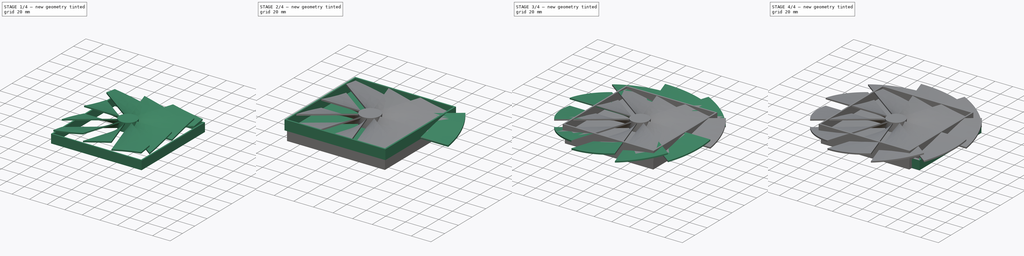
[diagram: build sequence overview — one tinted view per stage of 4, left to right]
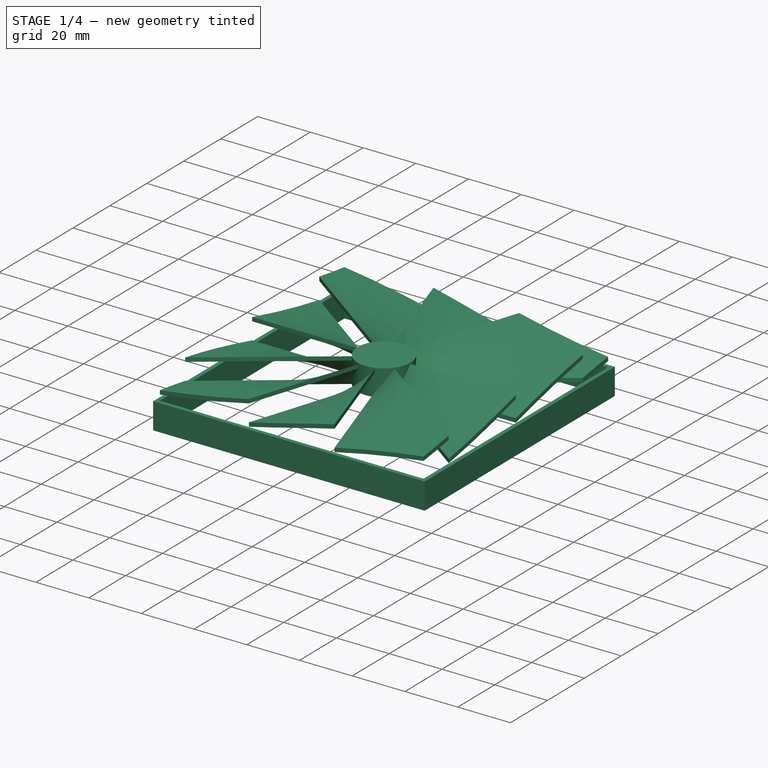
[diagram: stage 1 of 4 — iso view after this stage's code; geometry added in this stage tinted green]
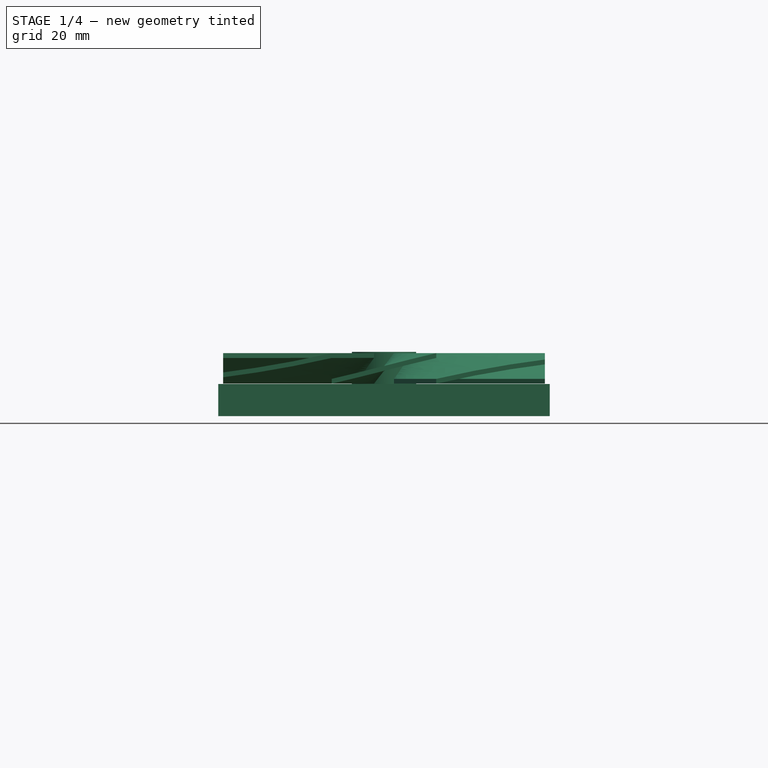
[diagram: stage 1 of 4 — front view after this stage's code; geometry added in this stage tinted green]
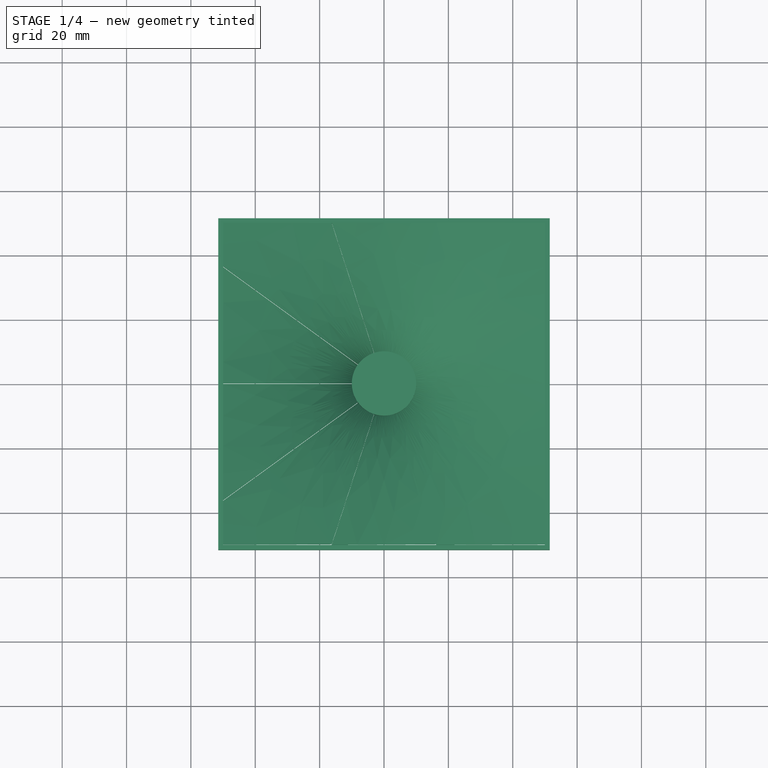
[diagram: stage 1 of 4 — top view after this stage's code; geometry added in this stage tinted green]
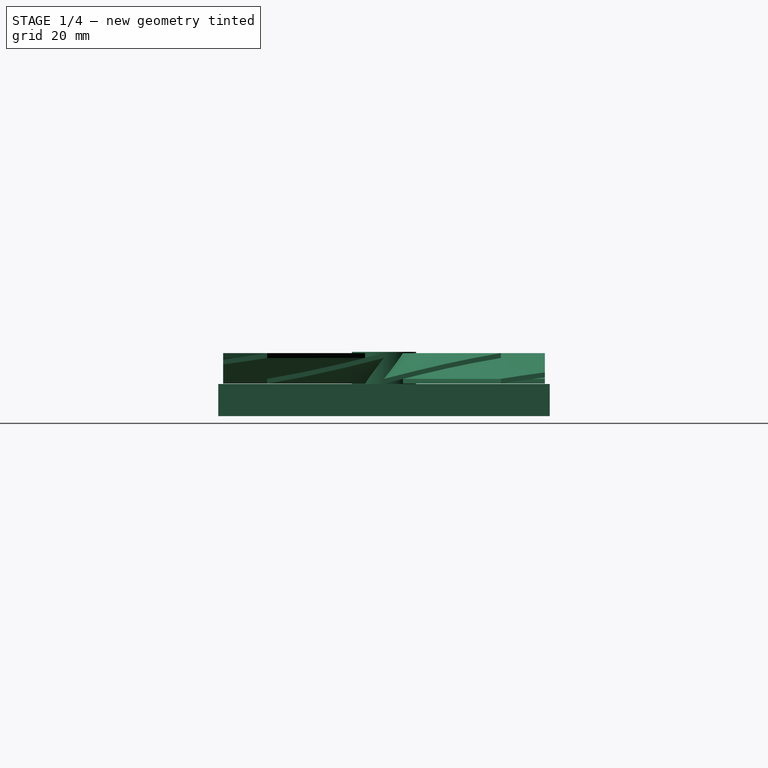
[diagram: stage 1 of 4 — right view after this stage's code; geometry added in this stage tinted green]
FCSTD DOCUMENT  (FreeCAD 0.17R13519 (Git))
Label: 风扇罩-A
License: All rights reserved
LicenseURL: http://en.wikipedia.org/wiki/All_rights_reserved
objects: Sketcher::SketchObject×6, PartDesign::Pad×3, PartDesign::Body×3, Part::Feature×3, PartDesign::Pocket×2, Part::Cylinder×1, Part::Helix×1, Part::Sweep×1, Part::FeaturePython×1, Part::MultiFuse×1, Part::Common×1, Part::Fuse×1
note: 29 computed .brp shape members not serialized (recipe doc carries the construction recipe); baked Part::Feature solids carry a one-line shape summary decoded from their .brp

FEATURE [PartDesign::Body] Body001
  Group = -> [Sketch003,Pad001]
  Origin = -> Origin001
  Placement = pos=(0,0,10) rot=(0,0,1;0rad)
  Tip = -> Pad001
FEATURE [Part::Feature] Body001001  label="Body002"
  shape: bbox 100 x 100 x 10 mm, 6 faces (baked)
FEATURE [Part::Feature] Fusion001
  shape: bbox 159.2 x 160.8 x 10 mm, 53 faces (baked)
FEATURE [Part::Common] Common
  Base = -> Body001001
  Tool = -> Fusion001
FEATURE [Sketcher::SketchObject] Sketch004
  MapMode = 5
  Support = -> [XY_Plane002]
  sketch-geometry (4):
    g0: LineSegment StartX=-51.5 StartY=51.5 StartZ=0 EndX=51.5 EndY=51.5 EndZ=0
    g1: LineSegment StartX=51.5 StartY=51.5 StartZ=0 EndX=51.5 EndY=-51.5 EndZ=0
    g2: LineSegment StartX=51.5 StartY=-51.5 StartZ=0 EndX=-51.5 EndY=-51.5 EndZ=0
    g3: LineSegment StartX=-51.5 StartY=-51.5 StartZ=0 EndX=-51.5 EndY=51.5 EndZ=0
  constraints (12):
    c: Coincident(g0,g1)
    c: Coincident(g1,g2)
    c: Coincident(g2,g3)
    c: Coincident(g3,g0)
    c: Horizontal(g0)
    c: Horizontal(g2)
    c: Vertical(g1)
    c: Vertical(g3)
    c: DistanceX(g0,g0) = 103
    c: DistanceY(g3,g3) = 103
    c: Distance(g-1,g0) = 51.5
    c: Distance(g-1,g3) = 51.5
FEATURE [PartDesign::Pad] Pad002
  Length = 10
  Length2 = 100
  Profile = -> Sketch004
  Type = 0
FEATURE [Sketcher::SketchObject] Sketch005
  ExternalGeometry = -> [Pad002]
  MapMode = 5
  Placement = pos=(0,0,10) rot=(0,0,1;0rad)
  Support = -> [Pad002]
  sketch-geometry (4):
    g0: LineSegment StartX=-50 StartY=50 StartZ=0 EndX=50 EndY=50 EndZ=0
    g1: LineSegment StartX=50 StartY=50 StartZ=0 EndX=50 EndY=-50 EndZ=0
    g2: LineSegment StartX=50 StartY=-50 StartZ=0 EndX=-50 EndY=-50 EndZ=0
    g3: LineSegment StartX=-50 StartY=-50 StartZ=0 EndX=-50 EndY=50 EndZ=0
  constraints (12):
    c: Coincident(g0,g1)
    c: Coincident(g1,g2)
    c: Coincident(g2,g3)
    c: Coincident(g3,g0)
    c: Horizontal(g0)
    c: Horizontal(g2)
    c: Vertical(g1)
    c: Vertical(g3)
    c: DistanceX(g0,g0) = 100
    c: DistanceY(g3,g3) = 100
    c: Distance(g0,g-3) = 1.5
    c: Distance(g0,g-4) = 1.5
FEATURE [PartDesign::Pocket] Pocket001
  BaseFeature = -> Pad002
  Length = 5
  Length2 = 100
  Profile = -> Sketch005
  Type = 1
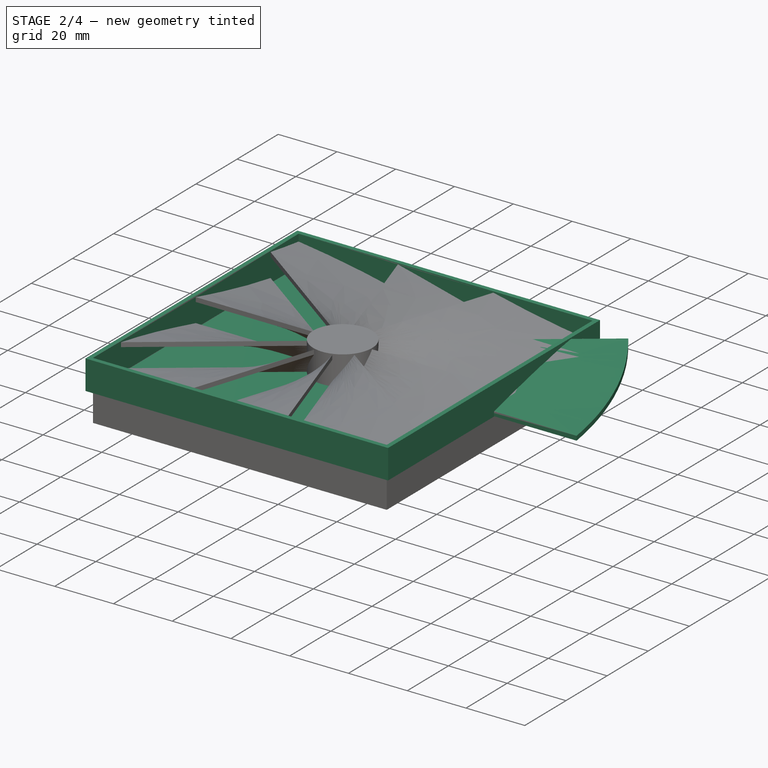
[diagram: stage 2 of 4 — iso view after this stage's code; geometry added in this stage tinted green]
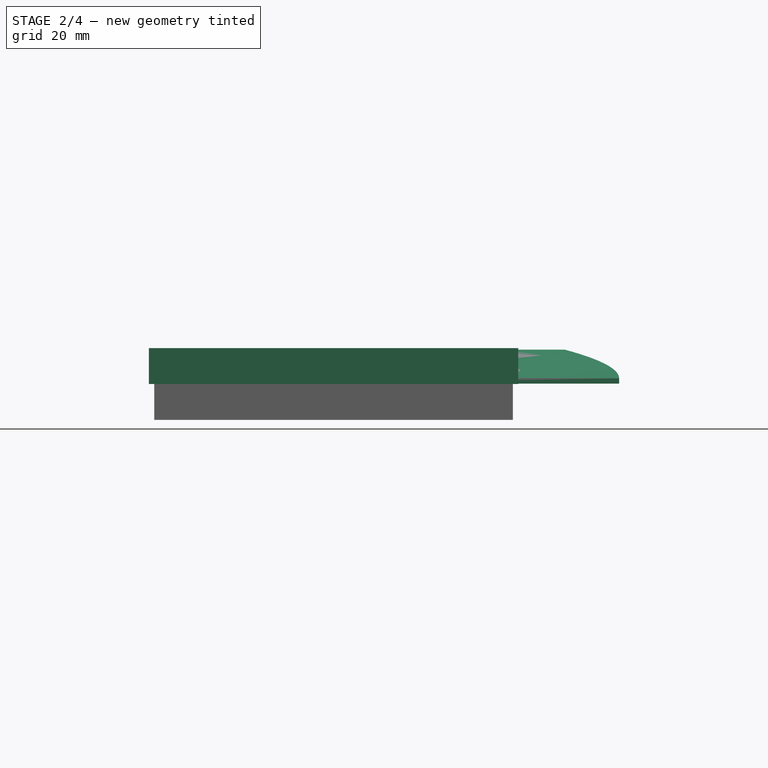
[diagram: stage 2 of 4 — front view after this stage's code; geometry added in this stage tinted green]
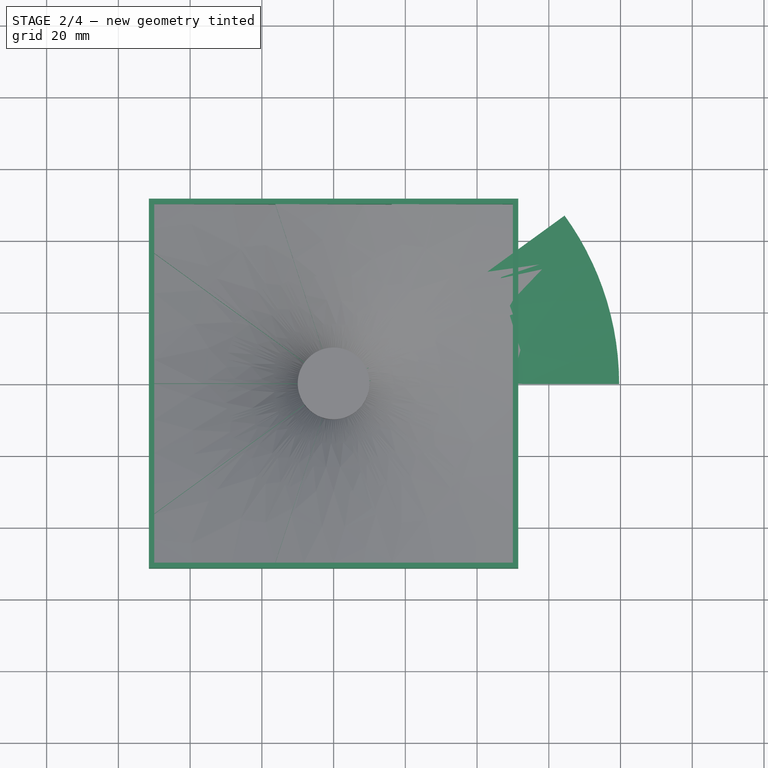
[diagram: stage 2 of 4 — top view after this stage's code; geometry added in this stage tinted green]
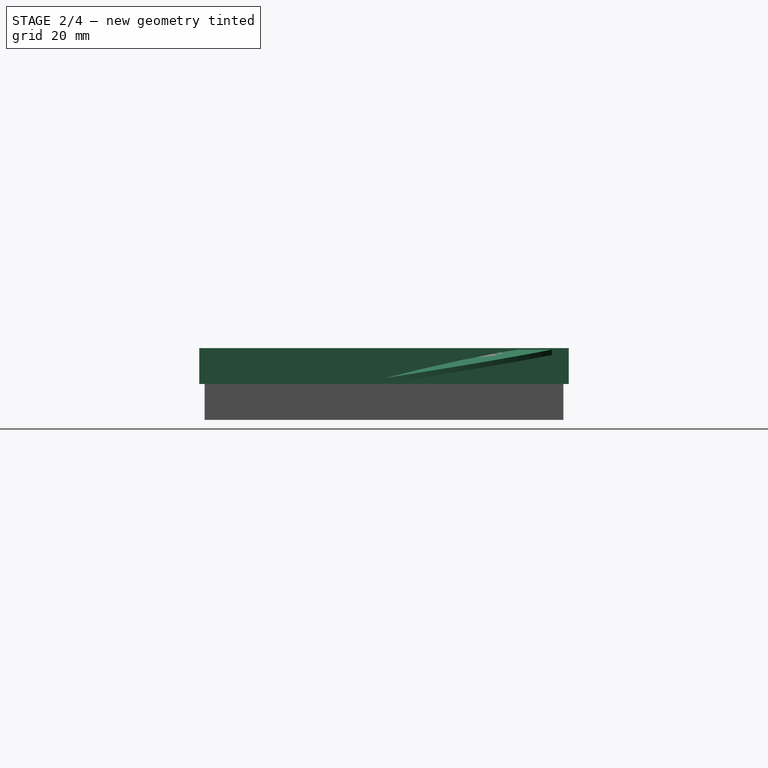
[diagram: stage 2 of 4 — right view after this stage's code; geometry added in this stage tinted green]
FEATURE [Part::Helix] Helix  label="螺旋体"
  Angle = 0
  AttacherType = Attacher::AttachEngine3D
  Height = 8
  LocalCoord = 0
  Pitch = 80
  Radius = 10
  Style = 1
FEATURE [Sketcher::SketchObject] Sketch002
  Placement = pos=(0,0,0) rot=(1,0,0;1.5708rad)
  sketch-geometry (4):
    g0: LineSegment StartX=-0.392547 StartY=11.5991 StartZ=0 EndX=79.6075 EndY=11.5991 EndZ=0
    g1: LineSegment StartX=79.6075 StartY=11.5991 StartZ=0 EndX=79.6075 EndY=10.0991 EndZ=0
    g2: LineSegment StartX=79.6075 StartY=10.0991 StartZ=0 EndX=-0.392547 EndY=10.0991 EndZ=0
    g3: LineSegment StartX=-0.392547 StartY=10.0991 StartZ=0 EndX=-0.392547 EndY=11.5991 EndZ=0
  constraints (10):
    c: Coincident(g0,g1)
    c: Coincident(g1,g2)
    c: Coincident(g2,g3)
    c: Coincident(g3,g0)
    c: Horizontal(g0)
    c: Horizontal(g2)
    c: Vertical(g1)
    c: Vertical(g3)
    c: DistanceY(g1,g1) = 1.5
    c: DistanceX(g0,g0) = 80
FEATURE [Part::Sweep] Sweep
  Frenet = true
  Sections = -> [Sketch002]
  Solid = true
  Spine = -> Helix [Edge1]
  Transition = 1
FEATURE [Sketcher::SketchObject] Sketch003
  MapMode = 5
  Support = -> [XY_Plane001]
  sketch-geometry (4):
    g0: LineSegment StartX=-50 StartY=50 StartZ=0 EndX=50 EndY=50 EndZ=0
    g1: LineSegment StartX=50 StartY=50 StartZ=0 EndX=50 EndY=-50 EndZ=0
    g2: LineSegment StartX=50 StartY=-50 StartZ=0 EndX=-50 EndY=-50 EndZ=0
    g3: LineSegment StartX=-50 StartY=-50 StartZ=0 EndX=-50 EndY=50 EndZ=0
  constraints (12):
    c: Coincident(g0,g1)
    c: Coincident(g1,g2)
    c: Coincident(g2,g3)
    c: Coincident(g3,g0)
    c: Horizontal(g0)
    c: Horizontal(g2)
    c: Vertical(g1)
    c: Vertical(g3)
    c: DistanceX(g0,g0) = 100
    c: DistanceY(g3,g3) = 100
    c: Distance(g-1,g3) = 50
    c: Distance(g-1,g0) = 50
FEATURE [PartDesign::Pad] Pad001
  Length = 10
  Length2 = 100
  Profile = -> Sketch003
  Type = 0
FEATURE [PartDesign::Body] Body001002
  Group = -> [Sketch004,Pad002,Sketch005,Pocket001]
  Origin = -> Origin002
  Placement = pos=(0,0,10) rot=(0,0,1;0rad)
  Tip = -> Pocket001
FEATURE [Part::Fuse] Fusion002
  Base = -> Common
  Tool = -> Body001002
FEATURE [Part::Feature] Fusion002001  label="Fusion003"
  shape: bbox 159.2 x 160.8 x 10 mm, 53 faces (baked)
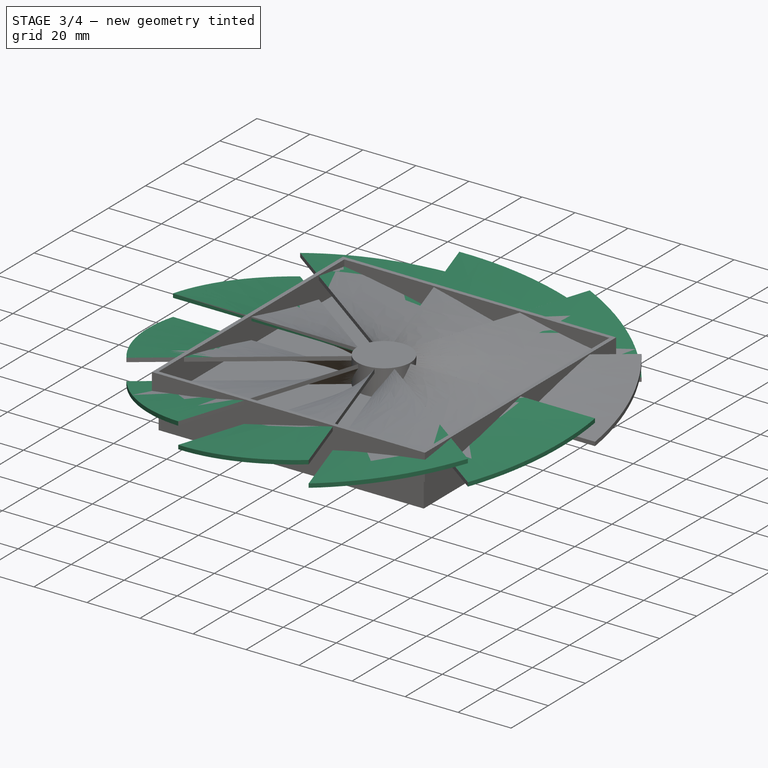
[diagram: stage 3 of 4 — iso view after this stage's code; geometry added in this stage tinted green]
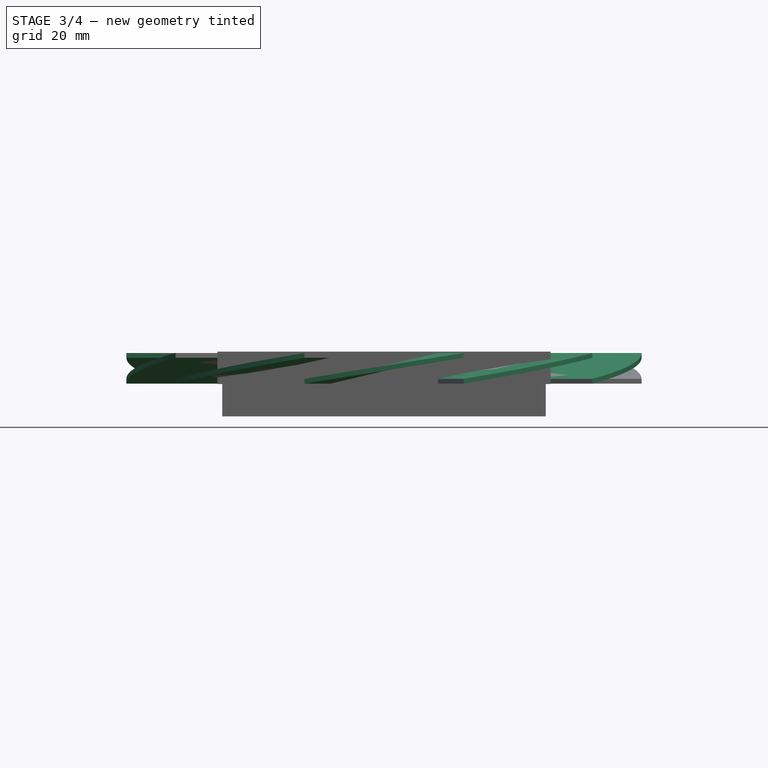
[diagram: stage 3 of 4 — front view after this stage's code; geometry added in this stage tinted green]
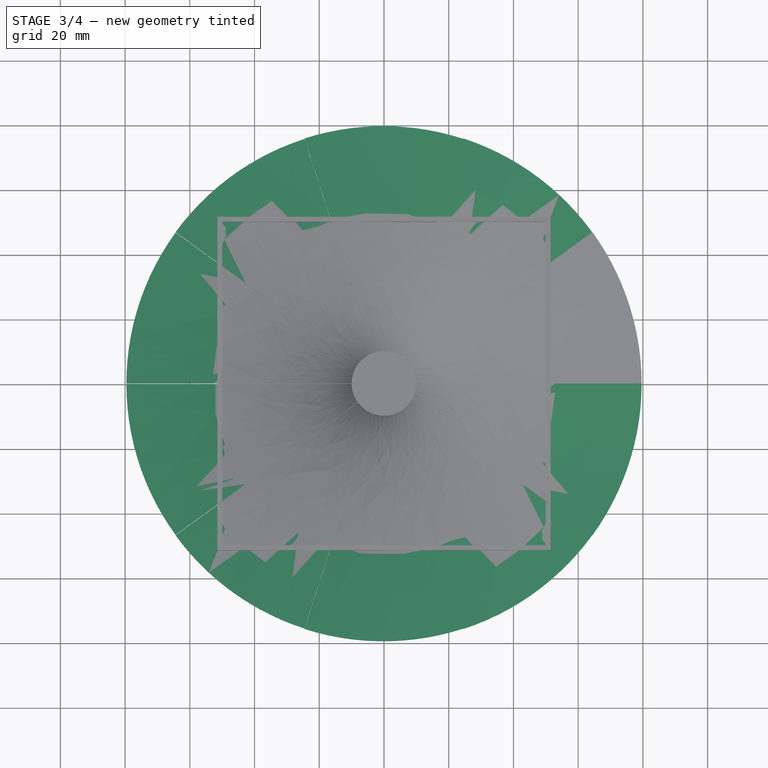
[diagram: stage 3 of 4 — top view after this stage's code; geometry added in this stage tinted green]
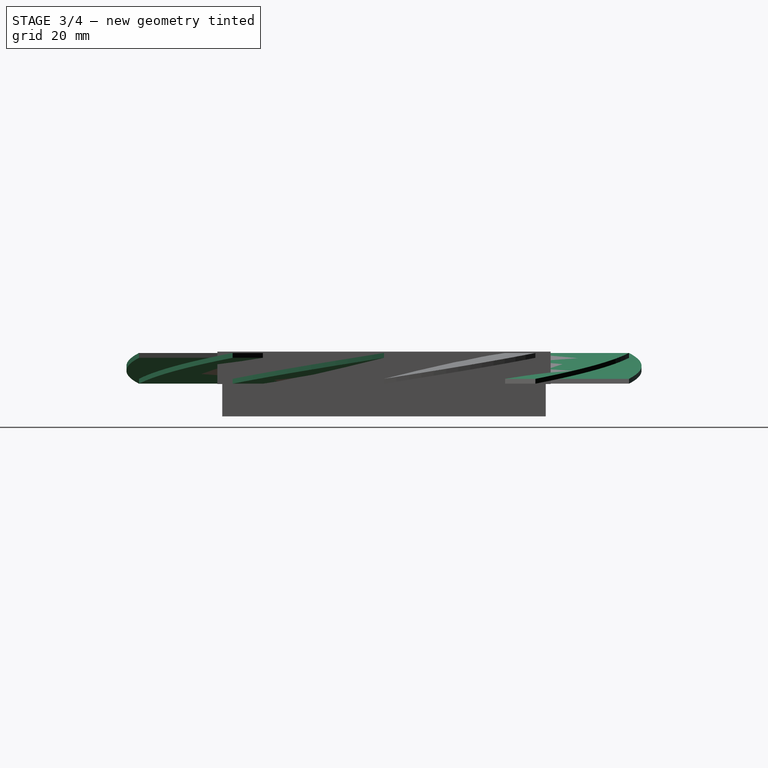
[diagram: stage 3 of 4 — right view after this stage's code; geometry added in this stage tinted green]
FEATURE [PartDesign::Body] Body
  Group = -> [Sketch,Pad,Sketch001,Pocket]
  Origin = -> Origin
  Tip = -> Pocket
FEATURE [Part::Cylinder] Cylinder  label="圆柱体"
  Angle = 360
  AttacherType = Attacher::AttachEngine3D
  Height = 10
  Placement = pos=(0,0,10) rot=(0,0,1;0rad)
  Radius = 10
FEATURE [Part::FeaturePython] Array  # Draft array (typed FeaturePython)
  Angle = 360
  ArrayType = 1
  Axis = (0,0,1)
  Base = -> Sweep
  Center = (0,0,0)
  Fuse = false
  IntervalAxis = (0,0,0)
  IntervalX = (1,0,0)
  IntervalY = (0,1,0)
  IntervalZ = (0,0,0)
  NumberPolar = 10
  NumberX = 2
  NumberY = 2
  NumberZ = 1
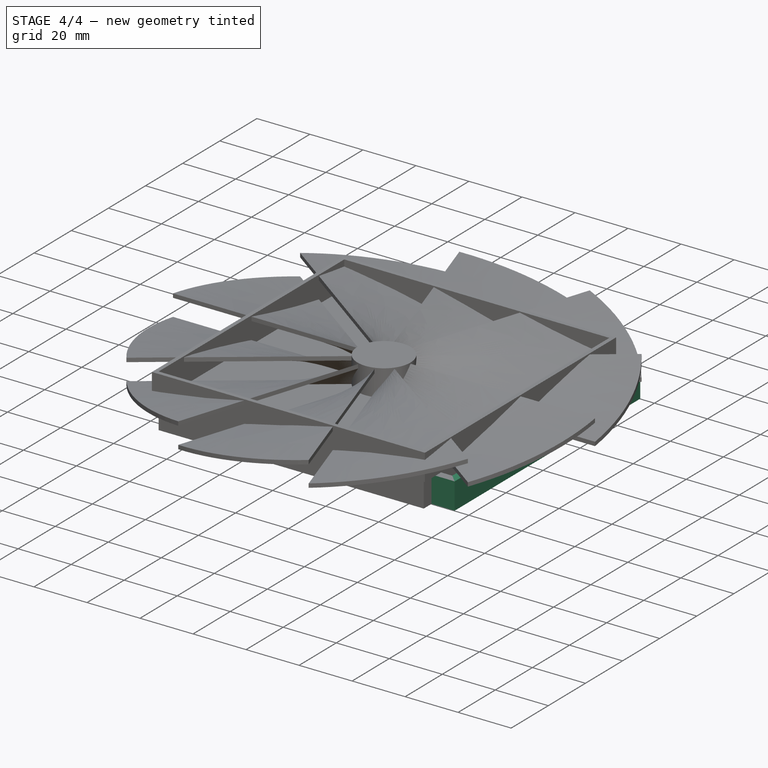
[diagram: stage 4 of 4 — iso view after this stage's code; geometry added in this stage tinted green]
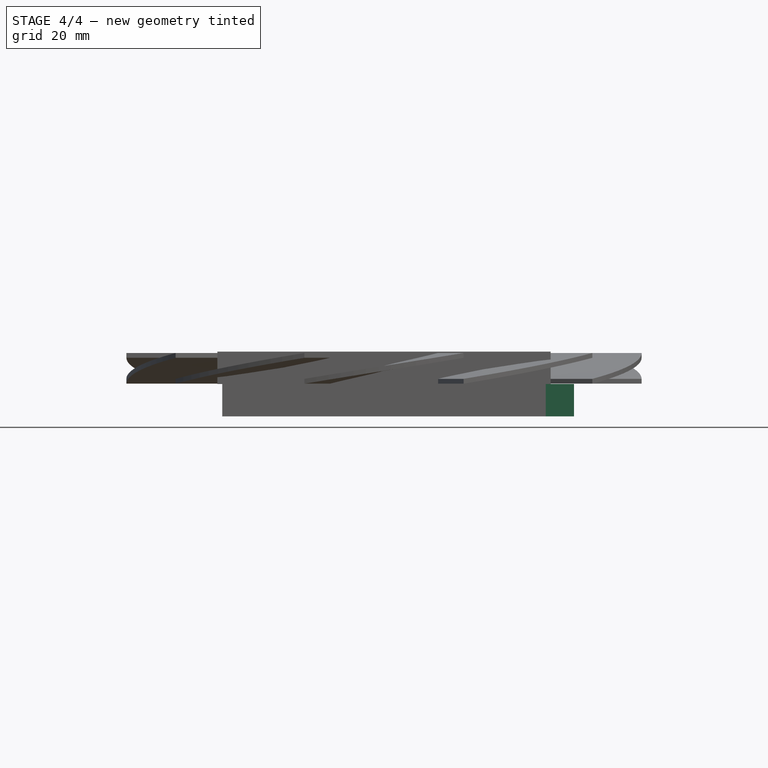
[diagram: stage 4 of 4 — front view after this stage's code; geometry added in this stage tinted green]
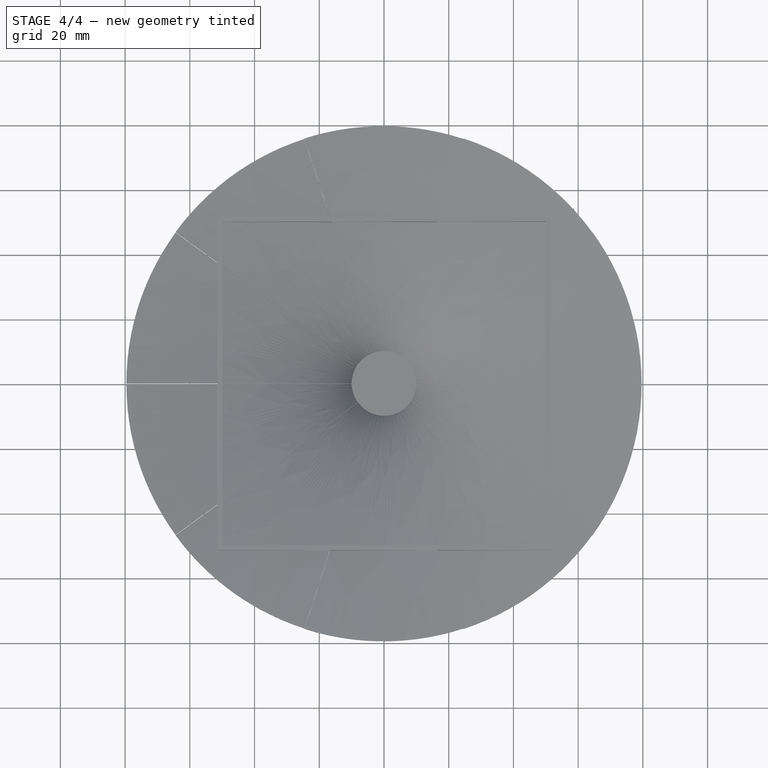
[diagram: stage 4 of 4 — top view after this stage's code; geometry added in this stage tinted green]
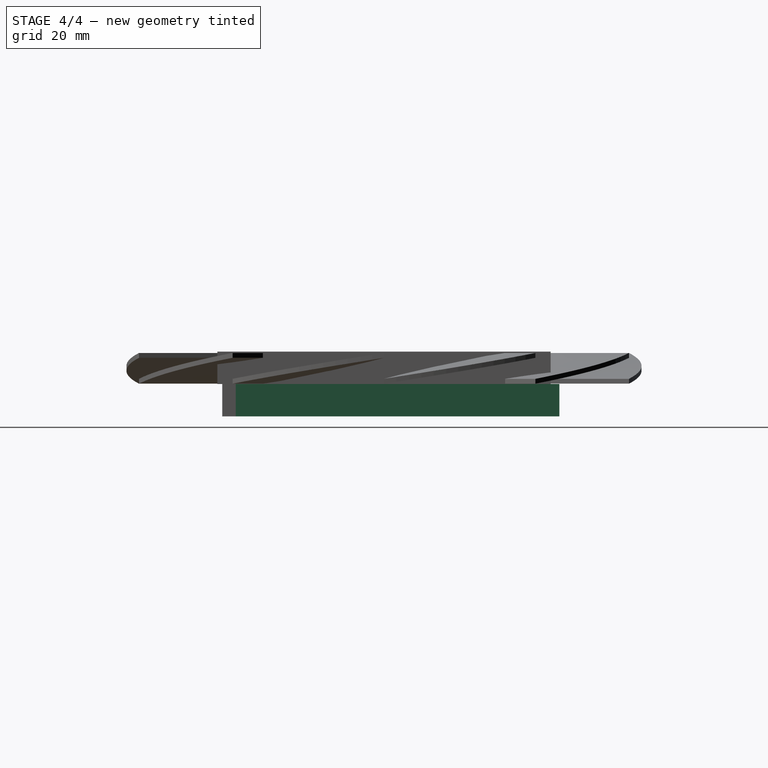
[diagram: stage 4 of 4 — right view after this stage's code; geometry added in this stage tinted green]
FEATURE [Sketcher::SketchObject] Sketch
  MapMode = 5
  Support = -> [XY_Plane]
  sketch-geometry (4):
    g0: LineSegment StartX=-41.2759 StartY=54.196 StartZ=0 EndX=58.7241 EndY=54.196 EndZ=0
    g1: LineSegment StartX=58.7241 StartY=54.196 StartZ=0 EndX=58.7241 EndY=-45.804 EndZ=0
    g2: LineSegment StartX=58.7241 StartY=-45.804 StartZ=0 EndX=-41.2759 EndY=-45.804 EndZ=0
    g3: LineSegment StartX=-41.2759 StartY=-45.804 StartZ=0 EndX=-41.2759 EndY=54.196 EndZ=0
  constraints (10):
    c: Coincident(g0,g1)
    c: Coincident(g1,g2)
    c: Coincident(g2,g3)
    c: Coincident(g3,g0)
    c: Horizontal(g0)
    c: Horizontal(g2)
    c: Vertical(g1)
    c: Vertical(g3)
    c: DistanceX(g0,g0) = 100
    c: DistanceY(g3,g3) = 100
FEATURE [PartDesign::Pad] Pad
  Length = 10
  Length2 = 100
  Profile = -> Sketch
  Type = 0
FEATURE [Sketcher::SketchObject] Sketch001
  ExternalGeometry = -> [Pad]
  MapMode = 5
  Placement = pos=(0,0,10) rot=(0,0,1;0rad)
  Support = -> [Pad]
  sketch-geometry (4):
    g0: LineSegment StartX=-38.2759 StartY=51.196 StartZ=0 EndX=55.7241 EndY=51.196 EndZ=0
    g1: LineSegment StartX=55.7241 StartY=51.196 StartZ=0 EndX=55.7241 EndY=-42.804 EndZ=0
    g2: LineSegment StartX=55.7241 StartY=-42.804 StartZ=0 EndX=-38.2759 EndY=-42.804 EndZ=0
    g3: LineSegment StartX=-38.2759 StartY=-42.804 StartZ=0 EndX=-38.2759 EndY=51.196 EndZ=0
  constraints (12):
    c: Coincident(g0,g1)
    c: Coincident(g1,g2)
    c: Coincident(g2,g3)
    c: Coincident(g3,g0)
    c: Horizontal(g0)
    c: Horizontal(g2)
    c: Vertical(g1)
    c: Vertical(g3)
    c: DistanceX(g0,g0) = 94
    c: DistanceY(g3,g3) = 94
    c: Distance(g0,g-5) = 3
    c: Distance(g-6,g3) = 3
FEATURE [PartDesign::Pocket] Pocket
  BaseFeature = -> Pad
  Length = 5
  Length2 = 100
  Profile = -> Sketch001
  Type = 1
FEATURE [Part::MultiFuse] Fusion
  Shapes = -> [Cylinder,Array]
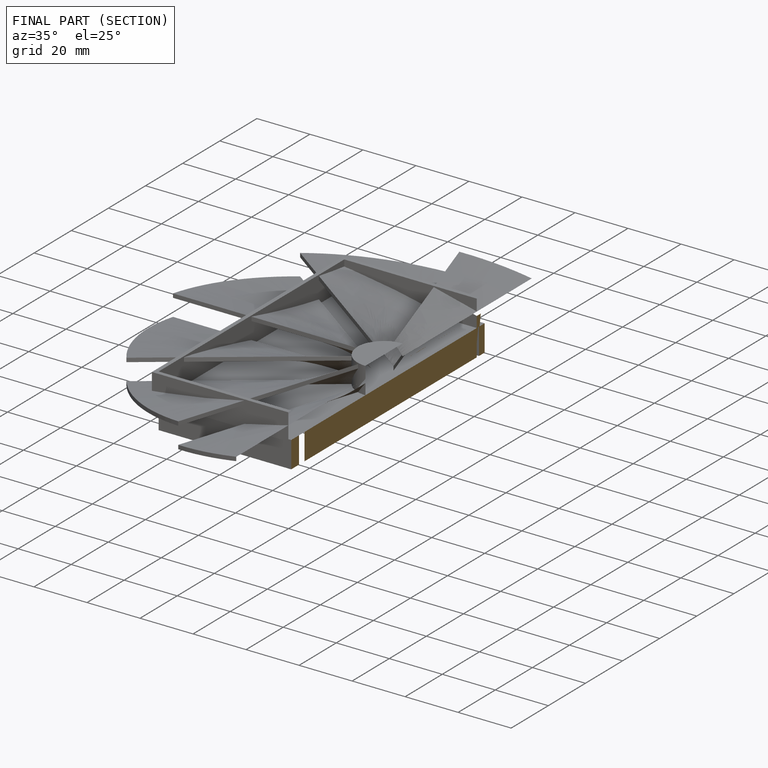
[diagram: finished part — half-section view (interior)]
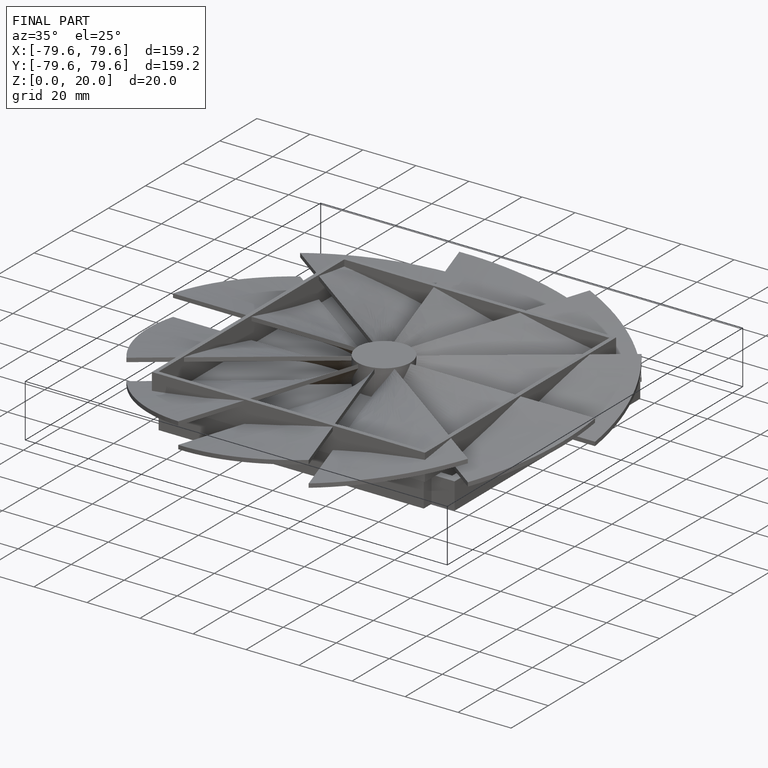
[diagram: finished part — iso view with bounding-box wireframe]
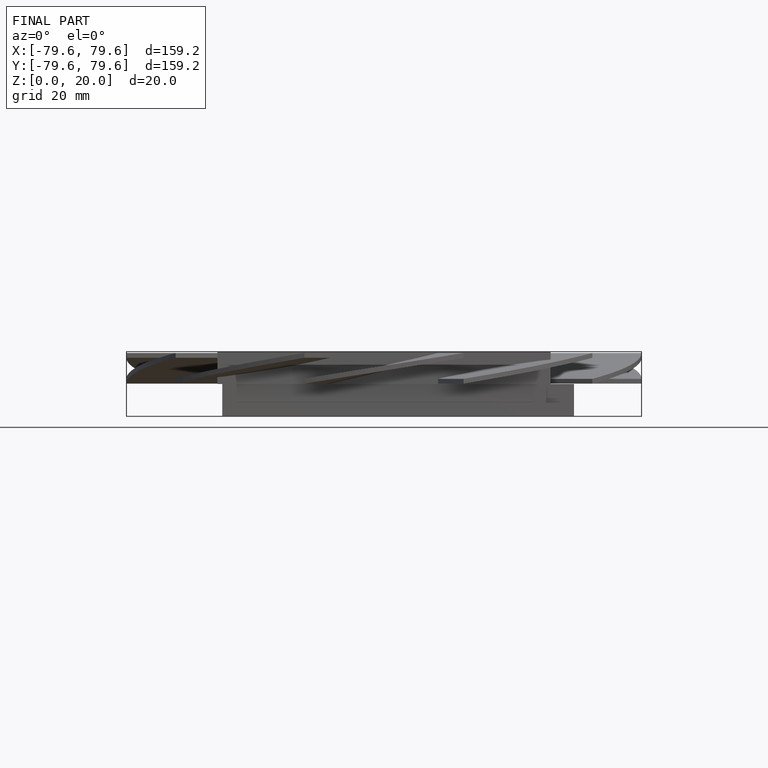
[diagram: finished part — front view with bounding-box wireframe]
